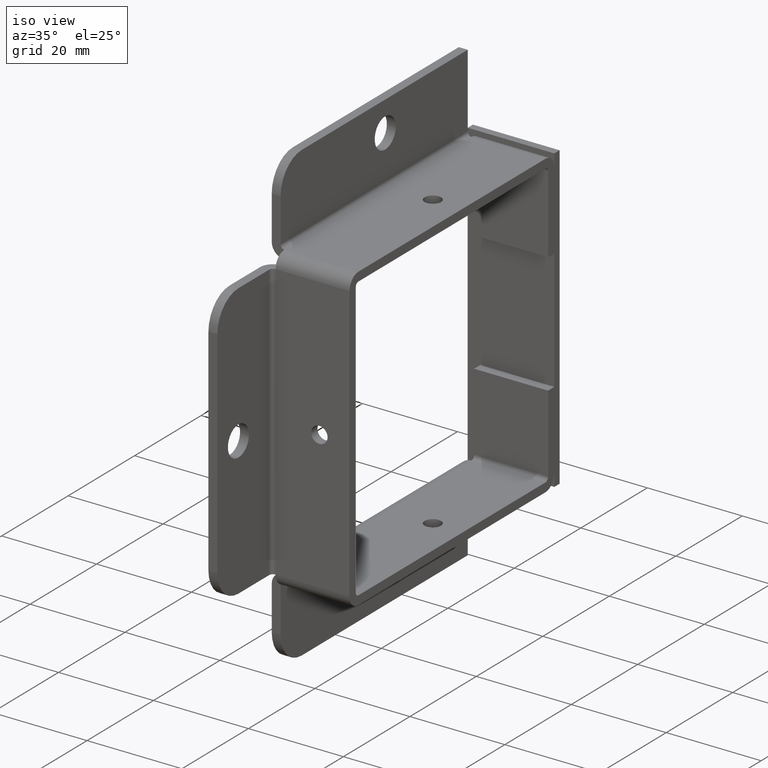
[diagram: clean part render]
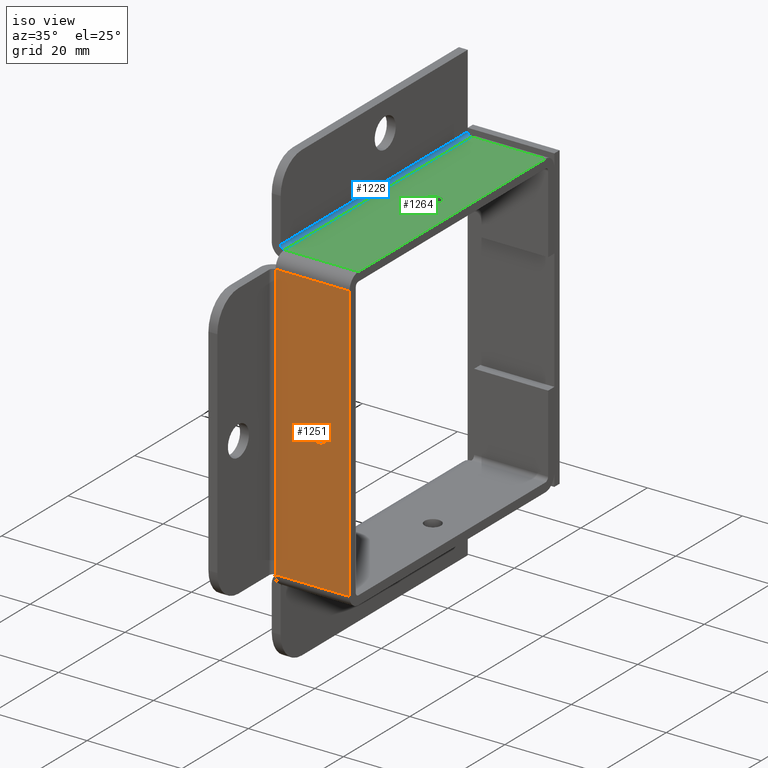
[diagram: same view with three faces highlighted in distinct colors, each labeled with its STEP entity id]
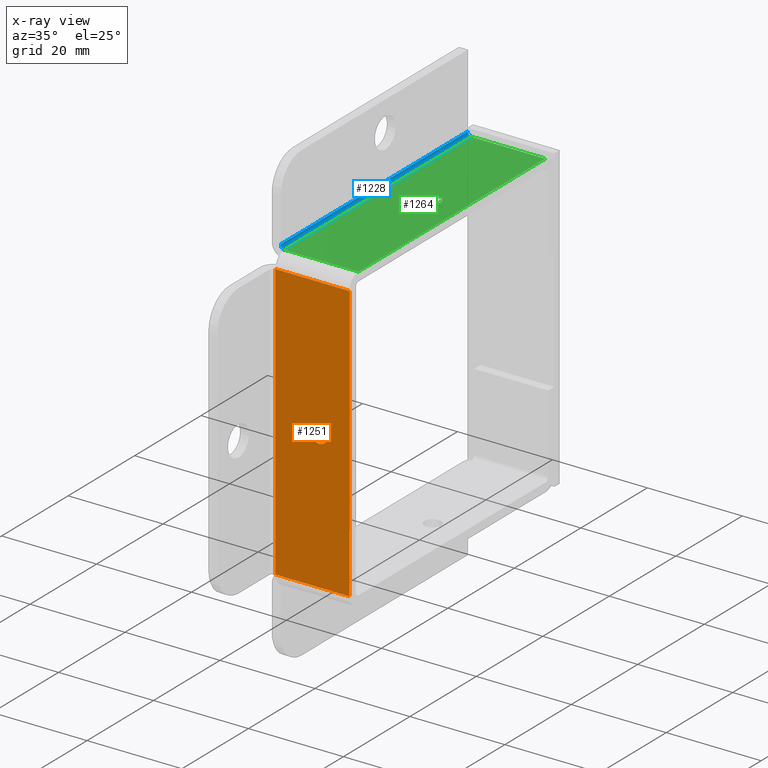
[diagram: x-ray of the same camera — body ghosted, the three highlighted faces saturated]
A machine part, iso view with three faces highlighted in distinct colors.
The next image is the same camera in x-ray (body ghosted, the three faces saturated) — at least one of them is partly hidden behind the body in this view.
Their STEP definitions:

[orange] entity #1251 — the highlighted planar face has unit normal (-0, -1, -0).
#38=FACE_BOUND('',#255,.T.);
#44=CIRCLE('',#1286,0.068);
#165=FACE_OUTER_BOUND('',#254,.T.);
#254=EDGE_LOOP('',(#962,#963,#964,#965));
#255=EDGE_LOOP('',(#966));
#341=LINE('',#1957,#451);
#361=LINE('',#2026,#471);
#362=LINE('',#2028,#472);
#363=LINE('',#2029,#473);
#451=VECTOR('',#1590,2.2895);
#471=VECTOR('',#1676,0.6135);
#472=VECTOR('',#1677,2.2895);
#473=VECTOR('',#1678,0.6135);
#518=VERTEX_POINT('',#1810);
#565=VERTEX_POINT('',#1946);
#566=VERTEX_POINT('',#1950);
#582=VERTEX_POINT('',#2025);
#583=VERTEX_POINT('',#2027);
#612=EDGE_CURVE('',#518,#518,#44,.T.);
#681=EDGE_CURVE('',#565,#566,#341,.T.);
#717=EDGE_CURVE('',#566,#582,#361,.T.);
#718=EDGE_CURVE('',#583,#582,#362,.T.);
#719=EDGE_CURVE('',#583,#565,#363,.T.);
#962=ORIENTED_EDGE('',*,*,#681,.T.);
#963=ORIENTED_EDGE('',*,*,#717,.T.);
#964=ORIENTED_EDGE('',*,*,#718,.F.);
#965=ORIENTED_EDGE('',*,*,#719,.T.);
#966=ORIENTED_EDGE('',*,*,#612,.T.);
#1101=PLANE('',#1374);
#1251=ADVANCED_FACE('',(#165,#38),#1101,.T.);
#1286=AXIS2_PLACEMENT_3D('',#1811,#1436,#1437);
#1374=AXIS2_PLACEMENT_3D('',#2024,#1674,#1675);
#1436=DIRECTION('center_axis',(1.13921882087105E-19,1.,1.7156567753843E-15));
#1437=DIRECTION('ref_axis',(-1.,0.,-6.90683624096538E-35));
#1590=DIRECTION('',(0.,1.7156567753843E-15,-1.));
#1674=DIRECTION('center_axis',(-1.13921882087105E-19,-1.,-1.7156567753843E-15));
#1675=DIRECTION('ref_axis',(1.,0.,0.));
#1676=DIRECTION('',(1.,-1.13921882087105E-19,0.));
#1677=DIRECTION('',(0.,1.71512449944288E-15,-1.));
#1678=DIRECTION('',(-1.,1.13921882087105E-19,1.95390210990238E-34));
#1810=CARTESIAN_POINT('',(0.140375,-1.213,-1.176));
#1811=CARTESIAN_POINT('Origin',(0.0723750000000001,-1.213,-1.176));
#1946=CARTESIAN_POINT('',(-0.291125,-1.213,-0.0312500000000003));
#1950=CARTESIAN_POINT('',(-0.291125,-1.213,-2.32075));
#1957=CARTESIAN_POINT('',(-0.291125,-1.213,-1.75651652809164));
#2024=CARTESIAN_POINT('Origin',(0.,-1.213,-1.19228305618327));
#2025=CARTESIAN_POINT('',(0.322375,-1.213,-2.32075));
#2026=CARTESIAN_POINT('',(-0.1611875,-1.213,-2.32075));
#2027=CARTESIAN_POINT('',(0.322375,-1.213,-0.0312500000000003));
#2028=CARTESIAN_POINT('',(0.322375,-1.213,-0.0312500000000003));
#2029=CARTESIAN_POINT('',(-3.35944238086665E-21,-1.213,-0.0312500000000001));

[blue] entity #1228 — the highlighted cylindrical surface (edge-blend (fillet) strip) has radius 0.7937 mm, axis along (-0, 1, 0).
#65=CIRCLE('',#1325,0.0312500000000001);
#66=CIRCLE('',#1327,0.0312499999999999);
#102=CYLINDRICAL_SURFACE('',#1331,0.03125);
#142=FACE_OUTER_BOUND('',#228,.T.);
#228=EDGE_LOOP('',(#860,#861,#862,#863));
#302=LINE('',#1850,#412);
#335=LINE('',#1937,#445);
#412=VECTOR('',#1479,2.2155);
#445=VECTOR('',#1564,2.2155);
#533=VERTEX_POINT('',#1847);
#534=VERTEX_POINT('',#1849);
#560=VERTEX_POINT('',#1922);
#561=VERTEX_POINT('',#1926);
#628=EDGE_CURVE('',#533,#534,#302,.T.);
#664=EDGE_CURVE('',#534,#560,#65,.T.);
#667=EDGE_CURVE('',#533,#561,#66,.T.);
#671=EDGE_CURVE('',#560,#561,#335,.T.);
#860=ORIENTED_EDGE('',*,*,#628,.F.);
#861=ORIENTED_EDGE('',*,*,#667,.T.);
#862=ORIENTED_EDGE('',*,*,#671,.F.);
#863=ORIENTED_EDGE('',*,*,#664,.F.);
#1228=ADVANCED_FACE('',(#142),#102,.F.);
#1325=AXIS2_PLACEMENT_3D('',#1923,#1545,#1546);
#1327=AXIS2_PLACEMENT_3D('',#1928,#1551,#1552);
#1331=AXIS2_PLACEMENT_3D('',#1936,#1562,#1563);
#1479=DIRECTION('',(-1.07758086400456E-16,1.,-3.28858589550801E-33));
#1545=DIRECTION('center_axis',(5.40514030073721E-17,-1.,0.));
#1546=DIRECTION('ref_axis',(-1.,0.,6.9935308637805E-16));
#1551=DIRECTION('center_axis',(5.40514030073721E-17,-1.,0.));
#1552=DIRECTION('ref_axis',(-1.,0.,-6.99353086378054E-16));
#1562=DIRECTION('center_axis',(-5.40514030073721E-17,1.,0.));
#1563=DIRECTION('ref_axis',(0.,0.,-1.));
#1564=DIRECTION('',(3.94579714724696E-17,-1.,0.));
#1847=CARTESIAN_POINT('',(-0.322375,-1.10775,0.10525));
#1849=CARTESIAN_POINT('',(-0.322375000000001,1.10775,0.10525));
#1850=CARTESIAN_POINT('',(-0.322375,-3.08907782248159E-16,0.10525));
#1922=CARTESIAN_POINT('',(-0.291125,1.10775,0.074));
#1923=CARTESIAN_POINT('Origin',(-0.291125,1.10775,0.10525));
#1926=CARTESIAN_POINT('',(-0.291125,-1.10775,0.074));
#1928=CARTESIAN_POINT('Origin',(-0.291125,-1.10775,0.10525));
#1936=CARTESIAN_POINT('Origin',(-0.291125,-3.49676543189026E-16,0.10525));
#1937=CARTESIAN_POINT('',(-0.291125,-0.553875000000002,0.074));

[green] entity #1264 — the highlighted planar face has unit normal (0, 0, 1).
#41=FACE_BOUND('',#271,.T.);
#48=CIRCLE('',#1292,0.068);
#178=FACE_OUTER_BOUND('',#270,.T.);
#270=EDGE_LOOP('',(#1017,#1018,#1019,#1020));
#271=EDGE_LOOP('',(#1021));
#335=LINE('',#1937,#445);
#371=LINE('',#2048,#481);
#377=LINE('',#2062,#487);
#379=LINE('',#2065,#489);
#445=VECTOR('',#1564,2.2155);
#481=VECTOR('',#1700,0.6135);
#487=VECTOR('',#1720,2.2155);
#489=VECTOR('',#1724,0.6135);
#522=VERTEX_POINT('',#1820);
#560=VERTEX_POINT('',#1922);
#561=VERTEX_POINT('',#1926);
#587=VERTEX_POINT('',#2047);
#588=VERTEX_POINT('',#2061);
#616=EDGE_CURVE('',#522,#522,#48,.T.);
#671=EDGE_CURVE('',#560,#561,#335,.T.);
#728=EDGE_CURVE('',#587,#560,#371,.T.);
#735=EDGE_CURVE('',#587,#588,#377,.T.);
#737=EDGE_CURVE('',#561,#588,#379,.T.);
#1017=ORIENTED_EDGE('',*,*,#671,.T.);
#1018=ORIENTED_EDGE('',*,*,#737,.T.);
#1019=ORIENTED_EDGE('',*,*,#735,.F.);
#1020=ORIENTED_EDGE('',*,*,#728,.T.);
#1021=ORIENTED_EDGE('',*,*,#616,.T.);
#1112=PLANE('',#1389);
#1264=ADVANCED_FACE('',(#178,#41),#1112,.T.);
#1292=AXIS2_PLACEMENT_3D('',#1821,#1448,#1449);
#1389=AXIS2_PLACEMENT_3D('',#2064,#1722,#1723);
#1448=DIRECTION('center_axis',(0.,0.,-1.));
#1449=DIRECTION('ref_axis',(1.,1.4913053338886E-33,-1.44783527766609E-19));
#1564=DIRECTION('',(3.94579714724696E-17,-1.,0.));
#1700=DIRECTION('',(-1.,0.,0.));
#1720=DIRECTION('',(1.62154209022116E-16,-1.,0.));
#1722=DIRECTION('center_axis',(0.,0.,1.));
#1723=DIRECTION('ref_axis',(1.,0.,0.));
#1724=DIRECTION('',(1.,0.,0.));
#1820=CARTESIAN_POINT('',(0.00437500000000015,0.130749999999977,0.0740000000000015));
#1821=CARTESIAN_POINT('Origin',(0.0723750000000001,0.130749999999977,0.0740000000000015));
#1922=CARTESIAN_POINT('',(-0.291125,1.10775,0.074));
#1926=CARTESIAN_POINT('',(-0.291125,-1.10775,0.074));
#1937=CARTESIAN_POINT('',(-0.291125,-0.553875000000002,0.074));
#2047=CARTESIAN_POINT('',(0.322375,1.10775,0.074));
#2048=CARTESIAN_POINT('',(0.1611875,1.10775,0.074));
#2061=CARTESIAN_POINT('',(0.322375,-1.10775,0.074));
#2062=CARTESIAN_POINT('',(0.322375,-1.213,0.074));
#2064=CARTESIAN_POINT('Origin',(-1.09273919746571E-16,-2.11820238451803E-15,
0.074));
#2065=CARTESIAN_POINT('',(-0.1611875,-1.10775,0.074));